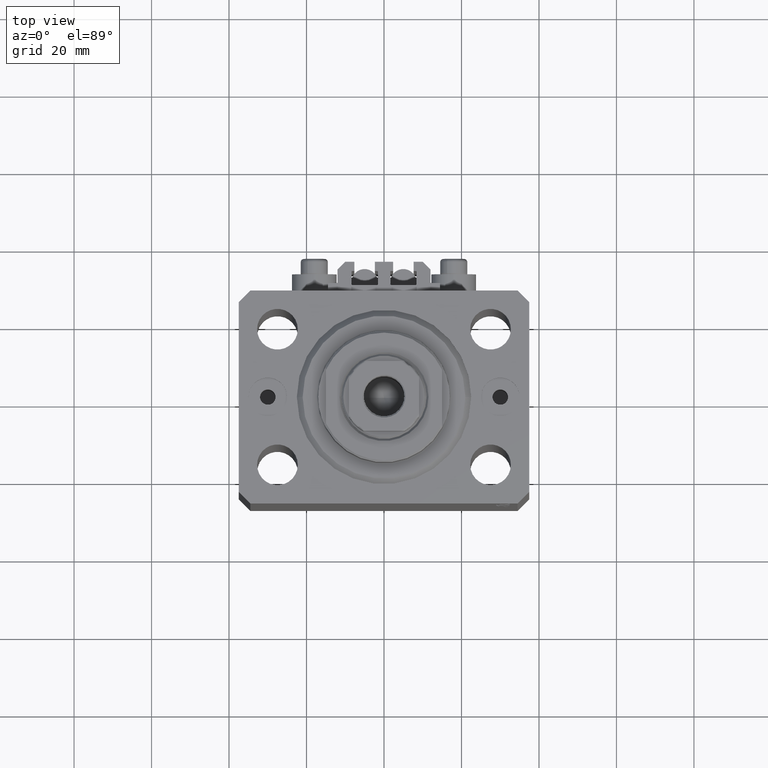
[diagram: clean part render]
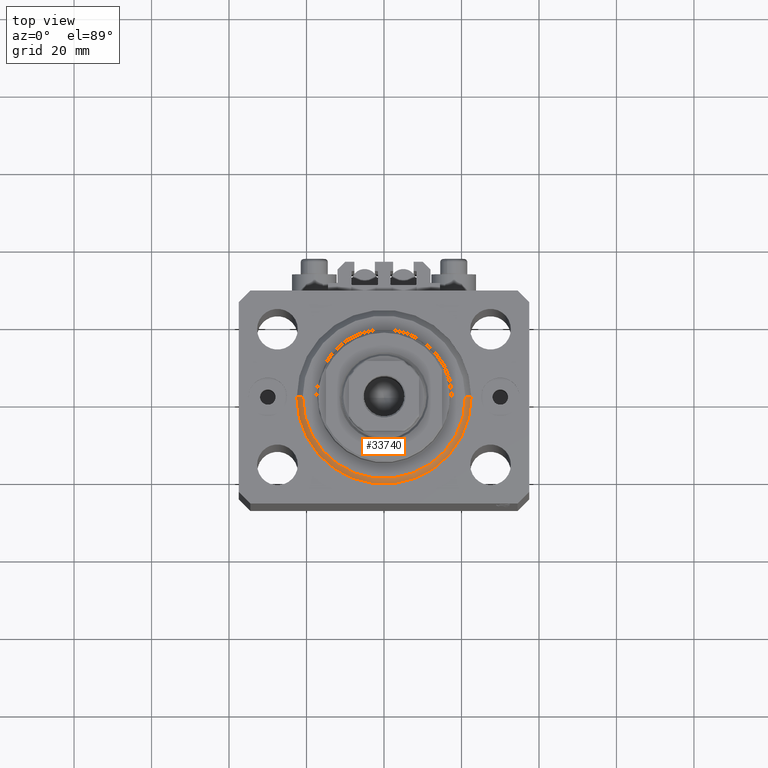
[diagram: same view with one face highlighted and labeled with its STEP entity id]
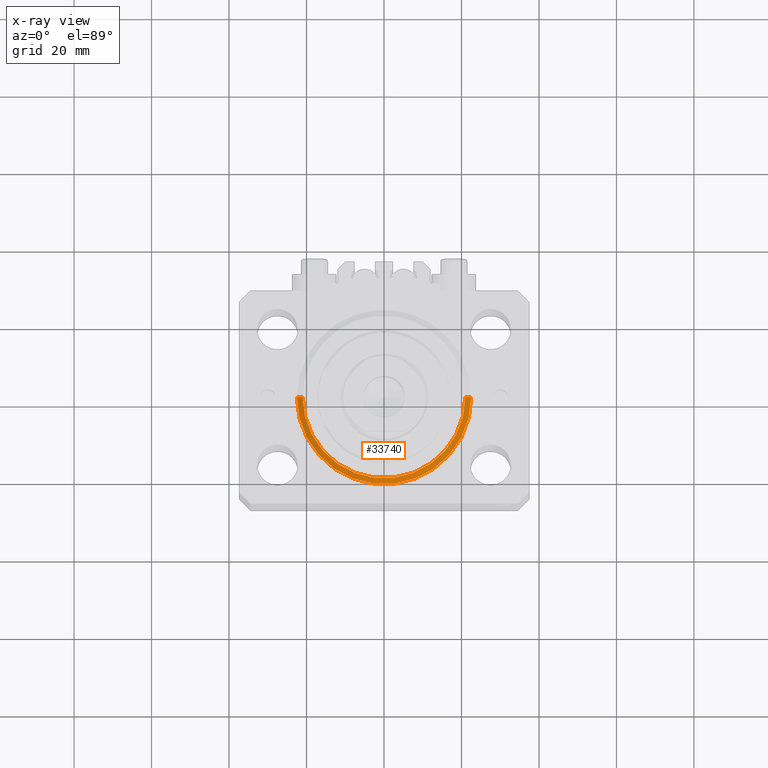
[diagram: x-ray of the same camera — body ghosted, the highlighted face saturated]
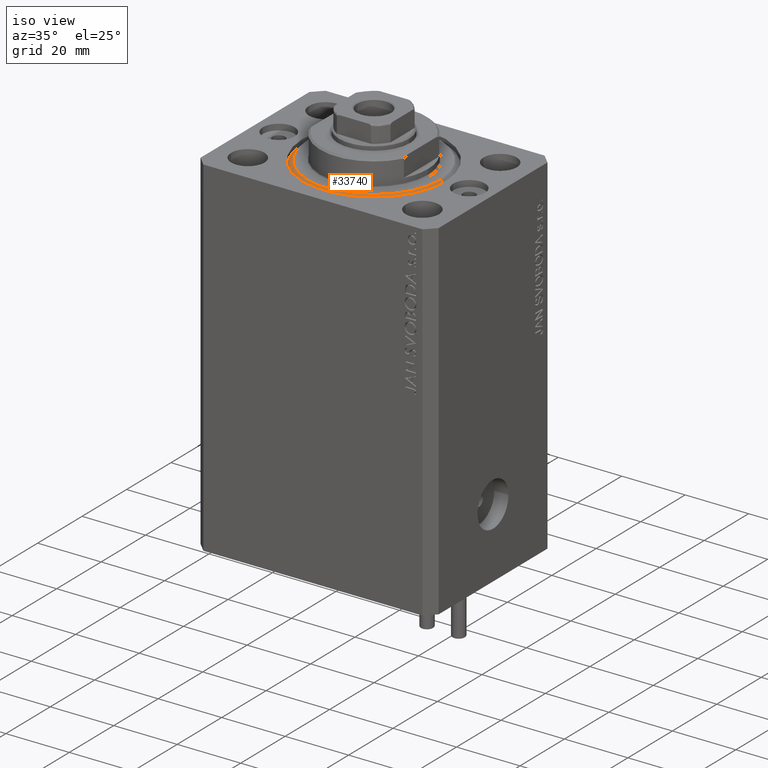
[diagram: same view with one face highlighted and labeled with its STEP entity id]
A machine part, top view. The second image highlights one B-rep face of the part: STEP entity #33740.
The next image is the same camera in x-ray: the body ghosted, the highlighted face saturated — about 0% of this face is hidden behind the body in this view.
A second angle (iso view) of the same face is appended — the face is thin or edge-on in the first view.
In plain terms, the highlighted conical surface has half-angle 45 deg.
Its self-contained STEP definition (entity closure, byte-faithful):
#546 = DIRECTION ( 'NONE',  ( 0.7071067811865500152, 0.000000000000000000, 0.7071067811865451302 ) ) ;
#3398 = ORIENTED_EDGE ( 'NONE', *, *, #31084, .F. ) ;
#3855 = CARTESIAN_POINT ( 'NONE',  ( 0.000000000000000000, 0.000000000000000000, 1.500000000000001332 ) ) ;
#4101 = DIRECTION ( 'NONE',  ( 1.000000000000000000, 0.000000000000000000, 0.000000000000000000 ) ) ;
#6872 = DIRECTION ( 'NONE',  ( 1.000000000000000000, 0.000000000000000000, 0.000000000000000000 ) ) ;
#7594 = CARTESIAN_POINT ( 'NONE',  ( -22.50000000000000355, 0.000000000000000000, 1.500000000000001332 ) ) ;
#7947 = CARTESIAN_POINT ( 'NONE',  ( 0.000000000000000000, 0.000000000000000000, 0.000000000000000000 ) ) ;
#8788 = LINE ( 'NONE', #19253, #43258 ) ;
#10553 = EDGE_CURVE ( 'NONE', #44205, #42260, #14541, .T. ) ;
#11810 = EDGE_CURVE ( 'NONE', #44205, #34152, #8788, .T. ) ;
#14437 = ORIENTED_EDGE ( 'NONE', *, *, #20873, .F. ) ;
#14541 = CIRCLE ( 'NONE', #32373, 20.99999999999998934 ) ;
#15151 = CARTESIAN_POINT ( 'NONE',  ( -22.50000000000000355, 2.755455298081545172E-15, 1.500000000000001332 ) ) ;
#15974 = AXIS2_PLACEMENT_3D ( 'NONE', #39892, #18066, #6872 ) ;
#18066 = DIRECTION ( 'NONE',  ( -0.000000000000000000, -0.000000000000000000, 1.000000000000000000 ) ) ;
#18688 = DIRECTION ( 'NONE',  ( -0.000000000000000000, -0.000000000000000000, 1.000000000000000000 ) ) ;
#19253 = CARTESIAN_POINT ( 'NONE',  ( 22.50000000000000355, 0.000000000000000000, 1.500000000000001332 ) ) ;
#20873 = EDGE_CURVE ( 'NONE', #42260, #33035, #47936, .T. ) ;
#24320 = ORIENTED_EDGE ( 'NONE', *, *, #10553, .F. ) ;
#25102 = FACE_OUTER_BOUND ( 'NONE', #35383, .T. ) ;
#25711 = CARTESIAN_POINT ( 'NONE',  ( 22.50000000000000355, 2.755455298081545172E-15, 1.500000000000001332 ) ) ;
#30003 = CARTESIAN_POINT ( 'NONE',  ( -20.99999999999998934, 2.663606788145492628E-15, 0.000000000000000000 ) ) ;
#31084 = EDGE_CURVE ( 'NONE', #33035, #34152, #46122, .T. ) ;
#32005 = VECTOR ( 'NONE', #47445, 1000.000000000000114 ) ;
#32179 = AXIS2_PLACEMENT_3D ( 'NONE', #3855, #18688, #4101 ) ;
#32373 = AXIS2_PLACEMENT_3D ( 'NONE', #7947, #41916, #41670 ) ;
#33035 = VERTEX_POINT ( 'NONE', #7594 ) ;
#33740 = ADVANCED_FACE ( 'NONE', ( #25102 ), #36129, .T. ) ;
#34152 = VERTEX_POINT ( 'NONE', #25711 ) ;
#34934 = CARTESIAN_POINT ( 'NONE',  ( 20.99999999999998934, 0.000000000000000000, 0.000000000000000000 ) ) ;
#35383 = EDGE_LOOP ( 'NONE', ( #14437, #24320, #46059, #3398 ) ) ;
#36129 = CONICAL_SURFACE ( 'NONE', #15974, 22.50000000000000355, 0.7853981633974517207 ) ;
#39892 = CARTESIAN_POINT ( 'NONE',  ( 0.000000000000000000, 0.000000000000000000, 1.500000000000001332 ) ) ;
#41670 = DIRECTION ( 'NONE',  ( 1.000000000000000000, 0.000000000000000000, 0.000000000000000000 ) ) ;
#41916 = DIRECTION ( 'NONE',  ( -0.000000000000000000, -0.000000000000000000, -1.000000000000000000 ) ) ;
#42260 = VERTEX_POINT ( 'NONE', #30003 ) ;
#43258 = VECTOR ( 'NONE', #546, 1000.000000000000114 ) ;
#44205 = VERTEX_POINT ( 'NONE', #34934 ) ;
#46059 = ORIENTED_EDGE ( 'NONE', *, *, #11810, .T. ) ;
#46122 = CIRCLE ( 'NONE', #32179, 22.50000000000000355 ) ;
#47445 = DIRECTION ( 'NONE',  ( -0.7071067811865500152, 8.659560562354963673E-17, 0.7071067811865451302 ) ) ;
#47936 = LINE ( 'NONE', #15151, #32005 ) ;